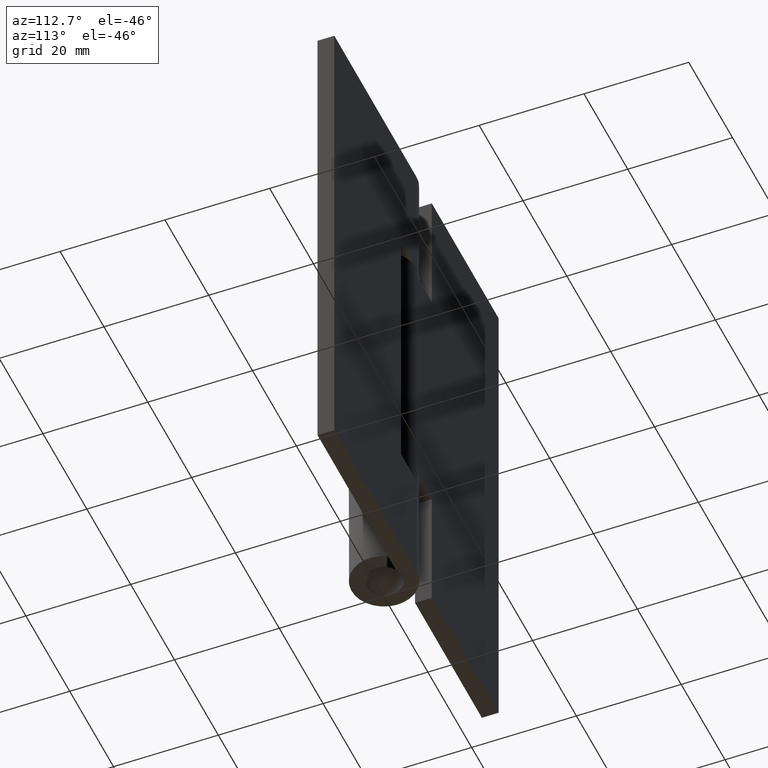
[diagram: clean part render]
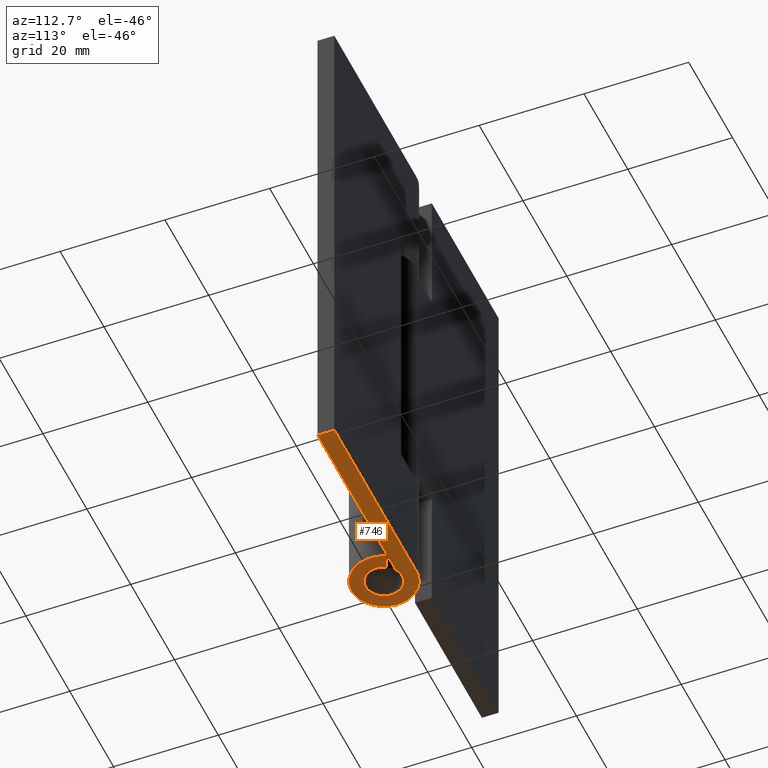
[diagram: same view with one face highlighted and labeled with its STEP entity id]
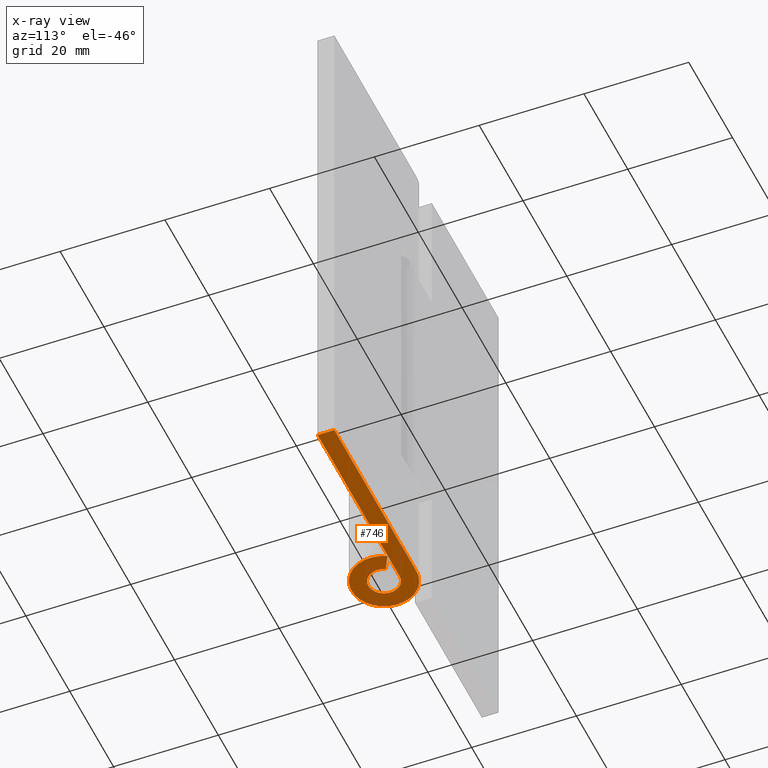
[diagram: x-ray of the same camera — body ghosted, the highlighted face saturated]
A machine part, auxiliary view. The second image highlights one B-rep face of the part: STEP entity #746.
The next image is the same camera in x-ray: the body ghosted, the highlighted face saturated — about 0% of this face is hidden behind the body in this view.
In plain terms, the highlighted face is a freeform B-spline surface patch.
Its self-contained STEP definition (entity closure, byte-faithful):
#669=CARTESIAN_POINT('',(-8.382590888933089,-6.818480634349208,0.0));
#670=CARTESIAN_POINT('',(39.682812762675077,-6.818480634349207,0.0));
#671=CARTESIAN_POINT('',(-8.382590888933089,6.819337642062829,0.0));
#672=CARTESIAN_POINT('',(39.682812762675077,6.819337642062829,0.0));
#673=B_SPLINE_SURFACE_WITH_KNOTS('',1,1,((#669,#671),(#670,#672)),.UNSPECIFIED.,.F.,.F.,.U.,(2,2),(2,2),(0.0,48.065403651608172),(0.0,13.637818276412039),.UNSPECIFIED.);
#674=CARTESIAN_POINT('',(-1.138884E-015,6.200001000000000,0.0));
#675=VERTEX_POINT('',#674);
#676=CARTESIAN_POINT('',(37.500006999999997,6.200001000000000,0.0));
#677=VERTEX_POINT('',#676);
#678=CARTESIAN_POINT('',(-1.138884E-015,6.200001000000000,0.0));
#679=CARTESIAN_POINT('',(37.500006999999997,6.200001000000000,0.0));
#680=QUASI_UNIFORM_CURVE('',1,(#678,#679),.UNSPECIFIED.,.F.,.U.);
#681=EDGE_CURVE('',#675,#677,#680,.T.);
#682=ORIENTED_EDGE('',*,*,#681,.T.);
#683=CARTESIAN_POINT('',(37.500006999999997,3.0,0.0));
#684=VERTEX_POINT('',#683);
#685=CARTESIAN_POINT('',(37.500006999999997,6.200001000000000,0.0));
#686=CARTESIAN_POINT('',(37.500006999999997,3.0,0.0));
#687=QUASI_UNIFORM_CURVE('',1,(#685,#686),.UNSPECIFIED.,.F.,.U.);
#688=EDGE_CURVE('',#677,#684,#687,.T.);
#689=ORIENTED_EDGE('',*,*,#688,.T.);
#690=CARTESIAN_POINT('',(2.220446E-016,3.0,0.0));
#691=VERTEX_POINT('',#690);
#692=CARTESIAN_POINT('',(37.500006999999997,3.0,0.0));
#693=CARTESIAN_POINT('',(2.220446E-016,3.0,0.0));
#694=QUASI_UNIFORM_CURVE('',1,(#692,#693),.UNSPECIFIED.,.F.,.U.);
#695=EDGE_CURVE('',#684,#691,#694,.T.);
#696=ORIENTED_EDGE('',*,*,#695,.T.);
#697=CARTESIAN_POINT('',(2.638650030874090,1.427419354838710,0.0));
#698=VERTEX_POINT('',#697);
#699=CARTESIAN_POINT('',(2.638650030874091,1.427419354838712,0.0));
#700=CARTESIAN_POINT('',(3.726110601328433,-0.582801298311906,0.0));
#701=CARTESIAN_POINT('',(2.076765961900384,-2.164957999475272,0.0));
#702=CARTESIAN_POINT('',(0.427421322472334,-3.747114700638639,0.0));
#703=CARTESIAN_POINT('',(-1.535861636913278,-2.577038810778384,0.0));
#704=CARTESIAN_POINT('',(-3.499144596298891,-1.406962920918129,0.0));
#705=CARTESIAN_POINT('',(-2.892327473881125,0.796518539540937,0.0));
#706=CARTESIAN_POINT('',(-2.285510351463362,3.000000000000000,0.0));
#707=CARTESIAN_POINT('',(0.0,3.0,0.0));
#715=(BOUNDED_CURVE()B_SPLINE_CURVE(2,(#699,#700,#701,#702,#703,#704,#705,#706,#707),.UNSPECIFIED.,.F.,.U.)B_SPLINE_CURVE_WITH_KNOTS((3,2,2,2,3),(0.0,0.250000000000000,0.500000000000000,0.750000000000000,1.0),.UNSPECIFIED.)CURVE()GEOMETRIC_REPRESENTATION_ITEM()RATIONAL_B_SPLINE_CURVE((1.0,0.795457786386864,1.0,0.795457786386864,1.0,0.795457786386864,1.0,0.795457786386864,1.0))REPRESENTATION_ITEM(''));
#716=EDGE_CURVE('',#698,#691,#715,.T.);
#717=ORIENTED_EDGE('',*,*,#716,.F.);
#718=CARTESIAN_POINT('',(5.453210063806460,2.950000000000000,0.0));
#719=VERTEX_POINT('',#718);
#720=CARTESIAN_POINT('',(2.638650030874090,1.427419354838710,0.0));
#721=CARTESIAN_POINT('',(5.453210063806460,2.950000000000000,0.0));
#722=QUASI_UNIFORM_CURVE('',1,(#720,#721),.UNSPECIFIED.,.F.,.U.);
#723=EDGE_CURVE('',#698,#719,#722,.T.);
#724=ORIENTED_EDGE('',*,*,#723,.T.);
#725=CARTESIAN_POINT('',(5.453210063806460,2.950000000000000,0.0));
#726=CARTESIAN_POINT('',(7.700629818115628,-1.204456210778381,0.0));
#727=CARTESIAN_POINT('',(4.291983680182778,-4.474247253901567,0.0));
#728=CARTESIAN_POINT('',(0.883337542249927,-7.744038297024753,0.0));
#729=CARTESIAN_POINT('',(-3.174114561574654,-5.325881067954930,0.0));
#730=CARTESIAN_POINT('',(-7.231566665399238,-2.907723838885107,0.0));
#731=CARTESIAN_POINT('',(-5.977477743463484,1.646138580557450,0.0));
#732=CARTESIAN_POINT('',(-4.723388821527732,6.200001000000000,0.0));
#733=CARTESIAN_POINT('',(0.0,6.200001000000000,0.0));
#741=(BOUNDED_CURVE()B_SPLINE_CURVE(2,(#725,#726,#727,#728,#729,#730,#731,#732,#733),.UNSPECIFIED.,.F.,.U.)B_SPLINE_CURVE_WITH_KNOTS((3,2,2,2,3),(0.0,0.250000000000000,0.500000000000000,0.750000000000000,1.0),.UNSPECIFIED.)CURVE()GEOMETRIC_REPRESENTATION_ITEM()RATIONAL_B_SPLINE_CURVE((1.0,0.795457786386864,1.0,0.795457786386864,1.0,0.795457786386864,1.0,0.795457786386864,1.0))REPRESENTATION_ITEM(''));
#742=EDGE_CURVE('',#719,#675,#741,.T.);
#743=ORIENTED_EDGE('',*,*,#742,.T.);
#744=EDGE_LOOP('',(#682,#689,#696,#717,#724,#743));
#745=FACE_OUTER_BOUND('',#744,.T.);
#746=ADVANCED_FACE('',(#745),#673,.F.);